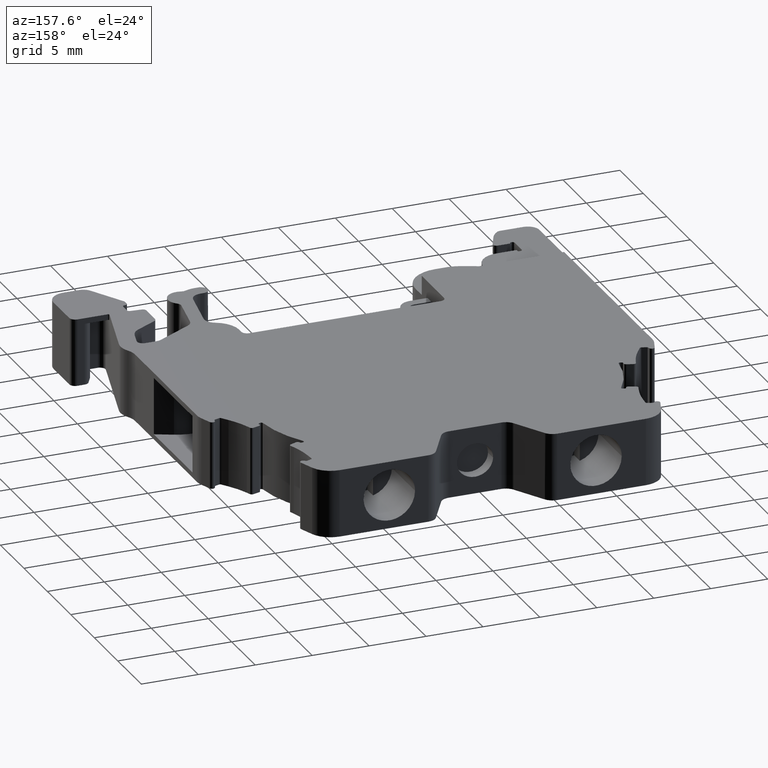
[diagram: clean part render]
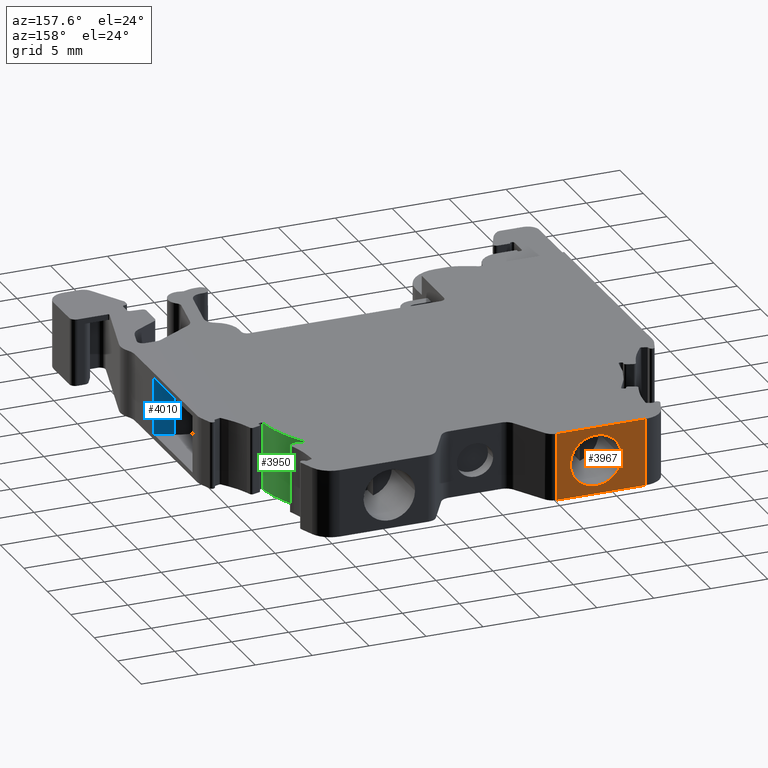
[diagram: same view with three faces highlighted in distinct colors, each labeled with its STEP entity id]
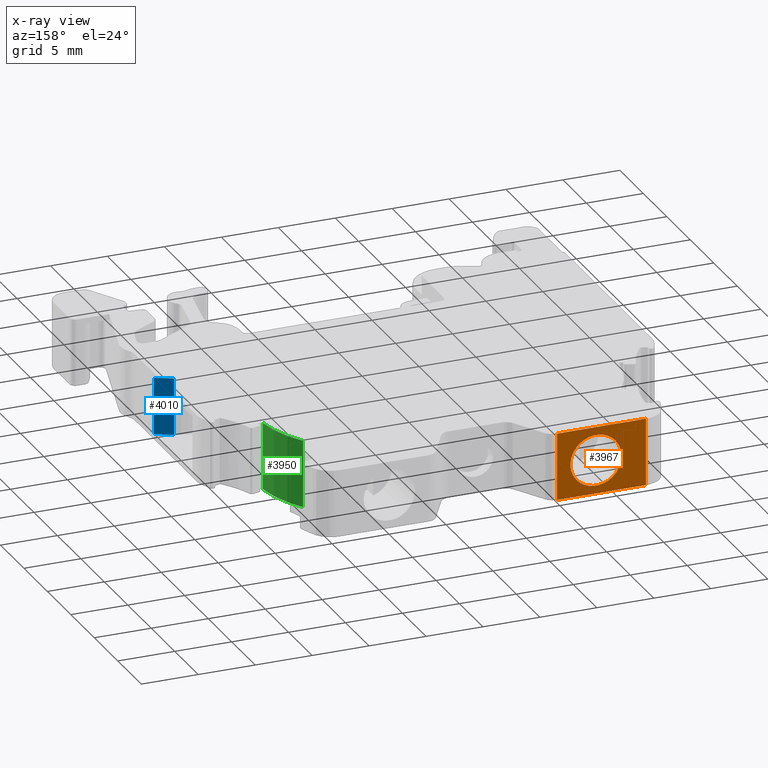
[diagram: x-ray of the same camera — body ghosted, the three highlighted faces saturated]
A machine part, auxiliary view with three faces highlighted in distinct colors.
The next image is the same camera in x-ray (body ghosted, the three faces saturated) — at least one of them is partly hidden behind the body in this view.
Their STEP definitions:

[orange] entity #3967 — the highlighted planar face has unit normal (0, 1, -0).
#35 = EDGE_LOOP ( 'NONE', ( #6344, #6346, #6331, #6330 ) ) ;
#51 = EDGE_LOOP ( 'NONE', ( #6409, #6322 ) ) ;
#753 = VERTEX_POINT ( 'NONE', #7096 ) ;
#765 = VERTEX_POINT ( 'NONE', #7098 ) ;
#791 = VERTEX_POINT ( 'NONE', #7079 ) ;
#811 = VERTEX_POINT ( 'NONE', #7167 ) ;
#831 = VERTEX_POINT ( 'NONE', #7174 ) ;
#869 = VERTEX_POINT ( 'NONE', #7232 ) ;
#1373 = VECTOR ( 'NONE', #9932, 1000.000000000000000 ) ;
#1491 = VECTOR ( 'NONE', #2111, 1000.000000000000000 ) ;
#1530 = VECTOR ( 'NONE', #2082, 1000.000000000000000 ) ;
#1676 = AXIS2_PLACEMENT_3D ( 'NONE', #5744, #5735, #5737 ) ;
#2082 = DIRECTION ( 'NONE',  ( -0.0000000000000000000, -0.0000000000000000000, -1.000000000000000000 ) ) ;
#2094 = CARTESIAN_POINT ( 'NONE',  ( 1672.766879172719200, 365.7678098009010300, -62.07273415799103600 ) ) ;
#2096 = CARTESIAN_POINT ( 'NONE',  ( 1680.560744343520400, 365.7678075343468400, -62.07273415799103600 ) ) ;
#2111 = DIRECTION ( 'NONE',  ( -0.0000000000000000000, -0.0000000000000000000, -1.000000000000000000 ) ) ;
#2113 = LINE ( 'NONE', #2096, #1491 ) ;
#2124 = LINE ( 'NONE', #2094, #1530 ) ;
#2130 = CARTESIAN_POINT ( 'NONE',  ( 1677.999173161057300, 365.7678082792843400, 1.979173458182428500 ) ) ;
#2132 = CARTESIAN_POINT ( 'NONE',  ( 1679.308370073069500, 365.7678078985530900, 0.4940672352341037300 ) ) ;
#2133 = CARTESIAN_POINT ( 'NONE',  ( 1677.979637676137100, 365.7678082849654400, 1.987182663300459900 ) ) ;
#2134 = CARTESIAN_POINT ( 'NONE',  ( 1676.991464076484400, 365.7678085723388800, 2.151961736929684800 ) ) ;
#2137 = CARTESIAN_POINT ( 'NONE',  ( 1677.697878680700300, 365.7678083669043800, 2.098969813389835800 ) ) ;
#2138 = CARTESIAN_POINT ( 'NONE',  ( 1677.419563153836900, 365.7678084478420700, 2.151673608678676100 ) ) ;
#2150 = CARTESIAN_POINT ( 'NONE',  ( 1679.385836942584300, 365.7678078760248500, 0.04342985474461064100 ) ) ;
#2151 = CARTESIAN_POINT ( 'NONE',  ( 1679.271007217667400, 365.7678079094186500, 0.6120610288339394200 ) ) ;
#2152 = CARTESIAN_POINT ( 'NONE',  ( 1678.439462721159500, 365.7678081512424300, 1.746832581210529900 ) ) ;
#2153 = CARTESIAN_POINT ( 'NONE',  ( 1678.087990294492600, 365.7678082534548600, 1.940574312649830000 ) ) ;
#2155 = CARTESIAN_POINT ( 'NONE',  ( 1676.780826826065300, 365.7678086335947100, 2.132270354472783200 ) ) ;
#2156 = CARTESIAN_POINT ( 'NONE',  ( 1676.541054871692900, 365.7678087033235100, 2.074585043420510200 ) ) ;
#2157 = CARTESIAN_POINT ( 'NONE',  ( 1676.422661770619200, 365.7678087377538500, 2.037064380014617100 ) ) ;
#2158 = CARTESIAN_POINT ( 'NONE',  ( 1679.235042276837900, 365.7678079198778400, 0.7108832077676678900 ) ) ;
#2159 = CARTESIAN_POINT ( 'NONE',  ( 1676.372241772183300, 365.7678087524164400, 2.019124522580689100 ) ) ;
#2160 = CARTESIAN_POINT ( 'NONE',  ( 1676.338699529231200, 365.7678087621709400, 2.006751379154274200 ) ) ;
#2161 = CARTESIAN_POINT ( 'NONE',  ( 1676.323280562331800, 365.7678087666549800, 2.000878509089128800 ) ) ;
#2163 = CARTESIAN_POINT ( 'NONE',  ( 1679.365929137719600, 365.7678078818141800, 0.2546147268411510500 ) ) ;
#2175 = CARTESIAN_POINT ( 'NONE',  ( 1679.240845261611000, 365.7678079181902700, 0.6956410759256852500 ) ) ;
#2177 = CARTESIAN_POINT ( 'NONE',  ( 1679.386029463042200, 365.7678078759688600, -0.09999999994313153700 ) ) ;
#2178 = CARTESIAN_POINT ( 'NONE',  ( 1679.253155281835200, 365.7678079146102700, 0.6622585559631711800 ) ) ;
#2179 = CARTESIAN_POINT ( 'NONE',  ( 1679.114000067561400, 365.7678079550783000, 1.017166103663982100 ) ) ;
#2180 = CARTESIAN_POINT ( 'NONE',  ( 1678.945426807168100, 365.7678080041017700, 1.273061537989994600 ) ) ;
#2181 = CARTESIAN_POINT ( 'NONE',  ( 1678.616996503759500, 365.7678080996133200, 1.601933485033848700 ) ) ;
#2182 = CARTESIAN_POINT ( 'NONE',  ( 1678.209032370726400, 365.7678082182545700, 1.881691991395737700 ) ) ;
#2183 = CARTESIAN_POINT ( 'NONE',  ( 1678.034866497318000, 365.7678082689041600, 1.963978010936223700 ) ) ;
#2188 = CARTESIAN_POINT ( 'NONE',  ( 1674.882684053509400, 365.7678091855987100, 0.1879006053762579100 ) ) ;
#2189 = CARTESIAN_POINT ( 'NONE',  ( 1676.016997647576300, 365.7678088557260000, 1.879836280950663200 ) ) ;
#2192 = CARTESIAN_POINT ( 'NONE',  ( 1675.054990341774100, 365.7678091354899800, 0.7650094231305434300 ) ) ;
#2196 = CARTESIAN_POINT ( 'NONE',  ( 1675.070185817002800, 365.7678091310708100, 0.8007027873401918500 ) ) ;
#2199 = CARTESIAN_POINT ( 'NONE',  ( 1674.935386492231100, 365.7678091702721900, 0.4642005549276006500 ) ) ;
#2206 = CARTESIAN_POINT ( 'NONE',  ( 1675.432230411865900, 365.7678090257836600, 1.382832862662324300 ) ) ;
#2214 = CARTESIAN_POINT ( 'NONE',  ( 1675.152471945477100, 365.7678091071409800, 0.9748687695517041000 ) ) ;
#2218 = CARTESIAN_POINT ( 'NONE',  ( 1675.287331411629100, 365.7678090679220900, 1.205299175885369100 ) ) ;
#2220 = CARTESIAN_POINT ( 'NONE',  ( 1674.882298074797700, 365.7678091857109700, -0.09999999994313180100 ) ) ;
#2222 = CARTESIAN_POINT ( 'NONE',  ( 1675.046969072134100, 365.7678091378226700, 0.7454435545723471200 ) ) ;
#2225 = CARTESIAN_POINT ( 'NONE',  ( 1675.093589554265500, 365.7678091242647700, 0.8538266234446165700 ) ) ;
#2226 = CARTESIAN_POINT ( 'NONE',  ( 1675.761101975146900, 365.7678089301436400, 1.711262782775550200 ) ) ;
#2820 = CARTESIAN_POINT ( 'NONE',  ( 1675.364834249040100, 365.7678090453833300, -3.049999999943056500 ) ) ;
#2830 = CARTESIAN_POINT ( 'NONE',  ( 1677.962789296280300, 365.7678082898651200, -3.049999999943056500 ) ) ;
#2836 = CARTESIAN_POINT ( 'NONE',  ( 1672.766879190167900, 365.7678098009012600, -3.049999999943050700 ) ) ;
#2862 = CARTESIAN_POINT ( 'NONE',  ( 1680.560744343520400, 365.7678075343467300, -3.049999999943059100 ) ) ;
#3607 = EDGE_CURVE ( 'NONE', #753, #791, #9943, .T. ) ;
#3760 = EDGE_CURVE ( 'NONE', #791, #869, #2124, .T. ) ;
#3761 = EDGE_CURVE ( 'NONE', #753, #765, #2113, .T. ) ;
#3777 = EDGE_CURVE ( 'NONE', #811, #831, #6736, .T. ) ;
#3967 = ADVANCED_FACE ( 'NONE', ( #5743, #5689 ), #5738, .T. ) ;
#4071 = EDGE_CURVE ( 'NONE', #831, #811, #6775, .T. ) ;
#4347 = EDGE_CURVE ( 'NONE', #765, #869, #6499, .T. ) ;
#5689 = FACE_OUTER_BOUND ( 'NONE', #35, .T. ) ;
#5735 = DIRECTION ( 'NONE',  ( 2.908126664620260100E-007, 0.9999999999999578100, -0.0000000000000000000 ) ) ;
#5737 = DIRECTION ( 'NONE',  ( -0.9999999999999578100, 2.908126664620260100E-007, 0.0000000000000000000 ) ) ;
#5738 = PLANE ( 'NONE',  #1676 ) ;
#5743 = FACE_BOUND ( 'NONE', #51, .T. ) ;
#5744 = CARTESIAN_POINT ( 'NONE',  ( 1674.371218004344400, 365.7678093343395200, -62.07273415799103600 ) ) ;
#6322 = ORIENTED_EDGE ( 'NONE', *, *, #4071, .T. ) ;
#6330 = ORIENTED_EDGE ( 'NONE', *, *, #3607, .F. ) ;
#6331 = ORIENTED_EDGE ( 'NONE', *, *, #3760, .F. ) ;
#6344 = ORIENTED_EDGE ( 'NONE', *, *, #3761, .T. ) ;
#6346 = ORIENTED_EDGE ( 'NONE', *, *, #4347, .T. ) ;
#6409 = ORIENTED_EDGE ( 'NONE', *, *, #3777, .T. ) ;
#6499 = B_SPLINE_CURVE_WITH_KNOTS ( 'NONE', 3,
 ( #2862, #2830, #2820, #2836 ),
 .UNSPECIFIED., .F., .F.,
 ( 4, 4 ),
 ( 0.0000000000000000000, 1.000000000000000000 ),
 .UNSPECIFIED. ) ;
#6736 = B_SPLINE_CURVE_WITH_KNOTS ( 'NONE', 3,
 ( #2177, #2150, #2163, #2132, #2151, #2178, #2175, #2158, #2179, #2180, #2181, #2152, #2182, #2153, #2183, #2130, #2133, #2137, #2138, #2134, #2155, #2156, #2157, #2159, #2160, #2161, #2189, #2226, #2206, #2218, #2214, #2225, #2196, #2192, #2222, #2199, #2188, #2220 ),
 .UNSPECIFIED., .F., .F.,
 ( 4, 1, 1, 1, 2, 2, 2, 1, 1, 1, 2, 2, 2, 1, 1, 1, 2, 2, 2, 1, 1, 1, 2, 2, 4 ),
 ( 0.0000000000000000000, 0.06250000000038806500, 0.09375000000058207600, 0.1093750000006928200, 0.1171875000007482200, 0.1250000000008036100, 0.2500000000016900900, 0.3125000000021649900, 0.3437500000024024100, 0.3593750000024809600, 0.3671875000024792900, 0.3750000000024776300, 0.5000000000019981800, 0.5625000000017584800, 0.5937500000016386900, 0.6093750000016258100, 0.6171875000016193700, 0.6250000000016129300, 0.7500000000010926800, 0.8125000000008326700, 0.8437500000007026600, 0.8593750000006167300, 0.8671875000005924200, 0.8750000000005681000, 1.000000000000000000 ),
 .UNSPECIFIED. ) ;
#6775 = B_SPLINE_CURVE_WITH_KNOTS ( 'NONE', 3,
 ( #8506, #8509, #8512, #8529, #8482, #8530, #8533, #8513, #8518, #8515, #8519, #8534, #8521, #8535, #8481, #8483, #8576, #8572, #8574, #8563, #8546, #8590, #8591, #8540, #8573, #8538, #8575, #8586, #8560, #8579, #8577, #8568, #8587, #8544, #8557, #8539, #8556, #8564 ),
 .UNSPECIFIED., .F., .F.,
 ( 4, 1, 1, 1, 2, 2, 2, 1, 1, 1, 2, 2, 2, 1, 1, 1, 2, 2, 2, 1, 1, 1, 2, 2, 4 ),
 ( 0.0000000000000000000, 0.06249999999990167600, 0.09374999999985250700, 0.1093749999998279200, 0.1171874999998156500, 0.1249999999998033800, 0.2499999999995082800, 0.3124999999993924900, 0.3437499999993725600, 0.3593749999994028100, 0.3671874999994179100, 0.3749999999994329500, 0.4999999999994032600, 0.5624999999994370100, 0.5937499999994539900, 0.6093749999994624300, 0.6171874999994666500, 0.6249999999994709800, 0.7499999999998723200, 0.8125000000001048100, 0.8437500000001959500, 0.8593750000002208200, 0.8671875000002145000, 0.8750000000002081700, 1.000000000000000000 ),
 .UNSPECIFIED. ) ;
#7079 = CARTESIAN_POINT ( 'NONE',  ( 1672.766878954609900, 365.7678086676238000, 2.850000000059714500 ) ) ;
#7096 = CARTESIAN_POINT ( 'NONE',  ( 1680.560744343520400, 365.7678075343467300, 2.850000000059717200 ) ) ;
#7098 = CARTESIAN_POINT ( 'NONE',  ( 1680.560744343520400, 365.7678075343467300, -3.049999999943059100 ) ) ;
#7167 = CARTESIAN_POINT ( 'NONE',  ( 1679.386029463042200, 365.7678078759688600, -0.09999999994313153700 ) ) ;
#7174 = CARTESIAN_POINT ( 'NONE',  ( 1674.882298074797700, 365.7678091857109700, -0.09999999994313180100 ) ) ;
#7232 = CARTESIAN_POINT ( 'NONE',  ( 1672.766879190167900, 365.7678098009012600, -3.049999999943050700 ) ) ;
#8481 = CARTESIAN_POINT ( 'NONE',  ( 1676.233461040514600, 365.7678087927755500, -2.163978010790605500 ) ) ;
#8482 = CARTESIAN_POINT ( 'NONE',  ( 1674.997320320172800, 365.7678091522610700, -0.8120610284411881000 ) ) ;
#8483 = CARTESIAN_POINT ( 'NONE',  ( 1676.269154376783700, 365.7678087823956000, -2.179173458053583500 ) ) ;
#8506 = CARTESIAN_POINT ( 'NONE',  ( 1674.882298074797700, 365.7678091857109700, -0.09999999994313180100 ) ) ;
#8509 = CARTESIAN_POINT ( 'NONE',  ( 1674.882490595255400, 365.7678091856548700, -0.2434298542630617700 ) ) ;
#8512 = CARTESIAN_POINT ( 'NONE',  ( 1674.902398400119200, 365.7678091798654200, -0.4546147260841905700 ) ) ;
#8513 = CARTESIAN_POINT ( 'NONE',  ( 1675.033285261032500, 365.7678091418019900, -0.9108832076820074800 ) ) ;
#8515 = CARTESIAN_POINT ( 'NONE',  ( 1675.322900730752700, 365.7678090575782300, -1.473061538035604700 ) ) ;
#8518 = CARTESIAN_POINT ( 'NONE',  ( 1675.154327469809500, 365.7678091066014800, -1.217166103161540400 ) ) ;
#8519 = CARTESIAN_POINT ( 'NONE',  ( 1675.651331034050100, 365.7678089620665100, -1.801933484847859600 ) ) ;
#8521 = CARTESIAN_POINT ( 'NONE',  ( 1676.059295167073300, 365.7678088434251400, -2.081691991185004500 ) ) ;
#8529 = CARTESIAN_POINT ( 'NONE',  ( 1674.959957464769600, 365.7678091631266300, -0.6940672346393190800 ) ) ;
#8530 = CARTESIAN_POINT ( 'NONE',  ( 1675.015172256005100, 365.7678091470694400, -0.8622585556829086600 ) ) ;
#8533 = CARTESIAN_POINT ( 'NONE',  ( 1675.027482276230300, 365.7678091434895000, -0.8956410757261624700 ) ) ;
#8534 = CARTESIAN_POINT ( 'NONE',  ( 1675.828864816622400, 365.7678089104373400, -1.946832580966514300 ) ) ;
#8535 = CARTESIAN_POINT ( 'NONE',  ( 1676.180337243327800, 365.7678088082246900, -2.140574312480903800 ) ) ;
#8538 = CARTESIAN_POINT ( 'NONE',  ( 1677.945046975532300, 365.7678082950247400, -2.200878508959103600 ) ) ;
#8539 = CARTESIAN_POINT ( 'NONE',  ( 1679.332941045609500, 365.7678078914076400, -0.6642005554390941800 ) ) ;
#8540 = CARTESIAN_POINT ( 'NONE',  ( 1677.896085765606100, 365.7678083092633900, -2.219124522460888200 ) ) ;
#8544 = CARTESIAN_POINT ( 'NONE',  ( 1679.213337196024400, 365.7678079261899600, -0.9650094230443473400 ) ) ;
#8546 = CARTESIAN_POINT ( 'NONE',  ( 1677.487500711522400, 365.7678084280849500, -2.332270354358269200 ) ) ;
#8556 = CARTESIAN_POINT ( 'NONE',  ( 1679.385643484329600, 365.7678078760811200, -0.3879006058895673200 ) ) ;
#8557 = CARTESIAN_POINT ( 'NONE',  ( 1679.221358465710600, 365.7678079238573900, -0.9454435544137536100 ) ) ;
#8560 = CARTESIAN_POINT ( 'NONE',  ( 1678.836097125792800, 365.7678080358960500, -1.582832862676705200 ) ) ;
#8563 = CARTESIAN_POINT ( 'NONE',  ( 1677.276863461218000, 365.7678084893410600, -2.351961736816023900 ) ) ;
#8564 = CARTESIAN_POINT ( 'NONE',  ( 1679.386029463042200, 365.7678078759688600, -0.09999999994313153700 ) ) ;
#8568 = CARTESIAN_POINT ( 'NONE',  ( 1679.174737983434400, 365.7678079374151100, -1.053826623429702700 ) ) ;
#8572 = CARTESIAN_POINT ( 'NONE',  ( 1676.570448856859000, 365.7678086947752300, -2.298969813276721600 ) ) ;
#8573 = CARTESIAN_POINT ( 'NONE',  ( 1677.929628008592100, 365.7678082995088300, -2.206751379033889300 ) ) ;
#8574 = CARTESIAN_POINT ( 'NONE',  ( 1676.848764384325700, 365.7678086138377000, -2.351673608564828700 ) ) ;
#8575 = CARTESIAN_POINT ( 'NONE',  ( 1678.251329890240200, 365.7678082059538300, -2.079836280974155300 ) ) ;
#8576 = CARTESIAN_POINT ( 'NONE',  ( 1676.288689861732100, 365.7678087767145600, -2.187182663190363500 ) ) ;
#8577 = CARTESIAN_POINT ( 'NONE',  ( 1679.115855592118100, 365.7678079545388000, -1.174868769610959900 ) ) ;
#8579 = CARTESIAN_POINT ( 'NONE',  ( 1678.980996125884800, 365.7678079937575700, -1.405299176003398400 ) ) ;
#8586 = CARTESIAN_POINT ( 'NONE',  ( 1678.507225563087100, 365.7678081315361300, -1.911262782377497700 ) ) ;
#8587 = CARTESIAN_POINT ( 'NONE',  ( 1679.198141720753700, 365.7678079306089100, -1.000702787283762800 ) ) ;
#8590 = CARTESIAN_POINT ( 'NONE',  ( 1677.727272665963300, 365.7678083583562100, -2.274585043303340100 ) ) ;
#8591 = CARTESIAN_POINT ( 'NONE',  ( 1677.845665767122500, 365.7678083239260300, -2.237064379895657800 ) ) ;
#9931 = CARTESIAN_POINT ( 'NONE',  ( 1701.754414352425100, 365.7678075343466700, 2.850000000059721200 ) ) ;
#9932 = DIRECTION ( 'NONE',  ( -1.000000000000000000, -0.0000000000000000000, 0.0000000000000000000 ) ) ;
#9943 = LINE ( 'NONE', #9931, #1373 ) ;

[blue] entity #4010 — the highlighted planar face has unit normal (-0.4226, -0.9063, 0).
#140 = EDGE_LOOP ( 'NONE', ( #5365, #5367, #5375, #5241 ) ) ;
#982 = EDGE_CURVE ( 'NONE', #6102, #6136, #7777, .T. ) ;
#1008 = EDGE_CURVE ( 'NONE', #6151, #6102, #7922, .T. ) ;
#1040 = EDGE_CURVE ( 'NONE', #6129, #6136, #8120, .T. ) ;
#1055 = EDGE_CURVE ( 'NONE', #6129, #6151, #8141, .T. ) ;
#1314 = VECTOR ( 'NONE', #7947, 1000.000000000000000 ) ;
#1333 = VECTOR ( 'NONE', #7795, 1000.000000000000000 ) ;
#1343 = VECTOR ( 'NONE', #8087, 1000.000000000000200 ) ;
#1355 = VECTOR ( 'NONE', #8144, 1000.000000000000000 ) ;
#1778 = AXIS2_PLACEMENT_3D ( 'NONE', #5942, #5927, #5963 ) ;
#3405 = CARTESIAN_POINT ( 'NONE',  ( 1704.726892161247200, 342.7750017802524700, 2.400000000071786500 ) ) ;
#3426 = CARTESIAN_POINT ( 'NONE',  ( 1706.208854873296300, 342.0839504688110500, 2.400000000065211300 ) ) ;
#3445 = CARTESIAN_POINT ( 'NONE',  ( 1706.208855558529000, 342.0839501219352900, -2.599999999964412100 ) ) ;
#3484 = CARTESIAN_POINT ( 'NONE',  ( 1704.726892161247200, 342.7750017802524700, -2.599999999966990500 ) ) ;
#4010 = ADVANCED_FACE ( 'NONE', ( #5923 ), #5943, .F. ) ;
#5241 = ORIENTED_EDGE ( 'NONE', *, *, #1040, .T. ) ;
#5365 = ORIENTED_EDGE ( 'NONE', *, *, #982, .F. ) ;
#5367 = ORIENTED_EDGE ( 'NONE', *, *, #1008, .F. ) ;
#5375 = ORIENTED_EDGE ( 'NONE', *, *, #1055, .F. ) ;
#5923 = FACE_OUTER_BOUND ( 'NONE', #140, .T. ) ;
#5927 = DIRECTION ( 'NONE',  ( -0.4226184508576977300, -0.9063076988499213500, 6.949787924828761200E-016 ) ) ;
#5942 = CARTESIAN_POINT ( 'NONE',  ( 1704.726892160425000, 342.7750017802525800, -499996.7999999999900 ) ) ;
#5943 = PLANE ( 'NONE',  #1778 ) ;
#5963 = DIRECTION ( 'NONE',  ( 0.9063076988499213500, -0.4226184508576977300, 0.0000000000000000000 ) ) ;
#6102 = VERTEX_POINT ( 'NONE', #3445 ) ;
#6129 = VERTEX_POINT ( 'NONE', #3405 ) ;
#6136 = VERTEX_POINT ( 'NONE', #3426 ) ;
#6151 = VERTEX_POINT ( 'NONE', #3484 ) ;
#7777 = LINE ( 'NONE', #7793, #1333 ) ;
#7793 = CARTESIAN_POINT ( 'NONE',  ( 1706.208854874966600, 342.0839500401054900, -62.07273415799103600 ) ) ;
#7795 = DIRECTION ( 'NONE',  ( -0.0000000000000000000, 0.0000000000000000000, 1.000000000000000000 ) ) ;
#7922 = LINE ( 'NONE', #7929, #1314 ) ;
#7929 = CARTESIAN_POINT ( 'NONE',  ( 1704.726892160571900, 342.7750017805675500, -2.599999999972624200 ) ) ;
#7947 = DIRECTION ( 'NONE',  ( 0.9063076988499213500, -0.4226184508576977300, 0.0000000000000000000 ) ) ;
#8087 = DIRECTION ( 'NONE',  ( 0.9063076716729646700, -0.4226185091388328100, -1.591328698925655900E-015 ) ) ;
#8115 = CARTESIAN_POINT ( 'NONE',  ( 1704.726892161247200, 342.7750017802525200, 2.400000000063902100 ) ) ;
#8120 = LINE ( 'NONE', #8115, #1343 ) ;
#8141 = LINE ( 'NONE', #8153, #1355 ) ;
#8144 = DIRECTION ( 'NONE',  ( -2.937108606580664700E-016, -6.298646301646525300E-016, -1.000000000000000000 ) ) ;
#8153 = CARTESIAN_POINT ( 'NONE',  ( 1704.726892161100500, 342.7750017799376700, -499996.7999999999900 ) ) ;

[green] entity #3950 — the highlighted cylindrical surface (partial cylindrical patch) has radius 10 mm, axis along (0, 0, 1).
#100 = EDGE_LOOP ( 'NONE', ( #4936, #4853, #4836, #6435 ) ) ;
#752 = VERTEX_POINT ( 'NONE', #7085 ) ;
#756 = VERTEX_POINT ( 'NONE', #7066 ) ;
#888 = VERTEX_POINT ( 'NONE', #7237 ) ;
#896 = VERTEX_POINT ( 'NONE', #7184 ) ;
#920 = EDGE_CURVE ( 'NONE', #888, #756, #7279, .T. ) ;
#944 = EDGE_CURVE ( 'NONE', #752, #896, #7356, .T. ) ;
#1288 = VECTOR ( 'NONE', #7348, 1000.000000000000000 ) ;
#1293 = VECTOR ( 'NONE', #7265, 1000.000000000000000 ) ;
#1410 = CIRCLE ( 'NONE', #1411, 9.999999999999786800 ) ;
#1411 = AXIS2_PLACEMENT_3D ( 'NONE', #9979, #9994, #10013 ) ;
#1715 = AXIS2_PLACEMENT_3D ( 'NONE', #5630, #5633, #5621 ) ;
#3236 = CARTESIAN_POINT ( 'NONE',  ( 1700.627744254698900, 358.5783066637475300, -3.049999999943091100 ) ) ;
#3244 = CARTESIAN_POINT ( 'NONE',  ( 1700.172202126589600, 359.2536184178483200, -3.049999999943088900 ) ) ;
#3249 = CARTESIAN_POINT ( 'NONE',  ( 1701.000335359078000, 357.8470972394794700, -3.049999999943089800 ) ) ;
#3273 = CARTESIAN_POINT ( 'NONE',  ( 1701.827291546109800, 354.7063960147223200, -3.049999999943092500 ) ) ;
#3274 = CARTESIAN_POINT ( 'NONE',  ( 1701.742163764591900, 355.5165304828956900, -3.049999999943089800 ) ) ;
#3275 = CARTESIAN_POINT ( 'NONE',  ( 1701.557561628566000, 356.3161637767097400, -3.049999999943091600 ) ) ;
#3614 = EDGE_CURVE ( 'NONE', #752, #756, #1410, .T. ) ;
#3950 = ADVANCED_FACE ( 'NONE', ( #5624 ), #5608, .T. ) ;
#4432 = EDGE_CURVE ( 'NONE', #896, #888, #6583, .T. ) ;
#4836 = ORIENTED_EDGE ( 'NONE', *, *, #920, .T. ) ;
#4853 = ORIENTED_EDGE ( 'NONE', *, *, #4432, .T. ) ;
#4936 = ORIENTED_EDGE ( 'NONE', *, *, #944, .T. ) ;
#5608 = CYLINDRICAL_SURFACE ( 'NONE', #1715, 9.999999999999786800 ) ;
#5621 = DIRECTION ( 'NONE',  ( 1.000000000000000000, 0.0000000000000000000, 0.0000000000000000000 ) ) ;
#5624 = FACE_OUTER_BOUND ( 'NONE', #100, .T. ) ;
#5630 = CARTESIAN_POINT ( 'NONE',  ( 1691.882046074054900, 353.6613637182994700, -62.07273415799103600 ) ) ;
#5633 = DIRECTION ( 'NONE',  ( 0.0000000000000000000, 0.0000000000000000000, 1.000000000000000000 ) ) ;
#6435 = ORIENTED_EDGE ( 'NONE', *, *, #3614, .F. ) ;
#6583 = B_SPLINE_CURVE_WITH_KNOTS ( 'NONE', 3,
 ( #3273, #3274, #3275, #3249, #3236, #3244 ),
 .UNSPECIFIED., .F., .F.,
 ( 4, 2, 4 ),
 ( 0.0000000000000000000, 0.5000000000000000000, 1.000000000000000000 ),
 .UNSPECIFIED. ) ;
#7066 = CARTESIAN_POINT ( 'NONE',  ( 1700.172202126589600, 359.2536184178483200, 2.850000000059717200 ) ) ;
#7085 = CARTESIAN_POINT ( 'NONE',  ( 1701.827291546109800, 354.7063960147223200, 2.850000000059717200 ) ) ;
#7184 = CARTESIAN_POINT ( 'NONE',  ( 1701.827291546109800, 354.7063960147223200, -3.049999999943092500 ) ) ;
#7237 = CARTESIAN_POINT ( 'NONE',  ( 1700.172202126589600, 359.2536184178483200, -3.049999999943088900 ) ) ;
#7265 = DIRECTION ( 'NONE',  ( 0.0000000000000000000, 0.0000000000000000000, 1.000000000000000000 ) ) ;
#7279 = LINE ( 'NONE', #7286, #1293 ) ;
#7286 = CARTESIAN_POINT ( 'NONE',  ( 1700.172202126589400, 359.2536184178480300, -62.07273415799103600 ) ) ;
#7348 = DIRECTION ( 'NONE',  ( -0.0000000000000000000, -0.0000000000000000000, -1.000000000000000000 ) ) ;
#7351 = CARTESIAN_POINT ( 'NONE',  ( 1701.827291546109800, 354.7063960147223700, -62.07273415799103600 ) ) ;
#7356 = LINE ( 'NONE', #7351, #1288 ) ;
#9979 = CARTESIAN_POINT ( 'NONE',  ( 1691.882046074054900, 353.6613637182994700, 2.850000000059714500 ) ) ;
#9994 = DIRECTION ( 'NONE',  ( 0.0000000000000000000, 0.0000000000000000000, 1.000000000000000000 ) ) ;
#10013 = DIRECTION ( 'NONE',  ( 1.000000000000000000, 0.0000000000000000000, 0.0000000000000000000 ) ) ;